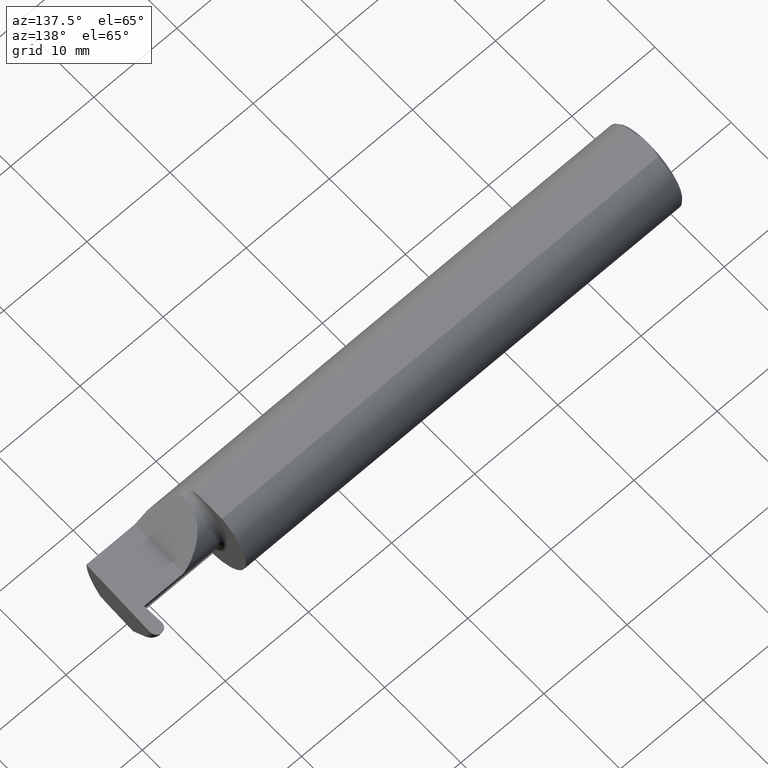
[diagram: clean part render]
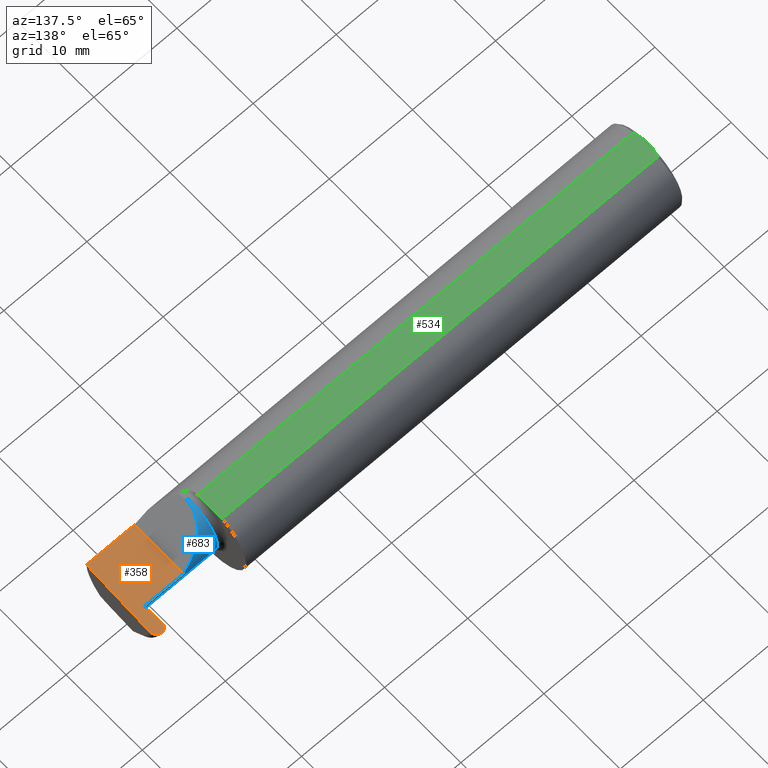
[diagram: same view with three faces highlighted in distinct colors, each labeled with its STEP entity id]
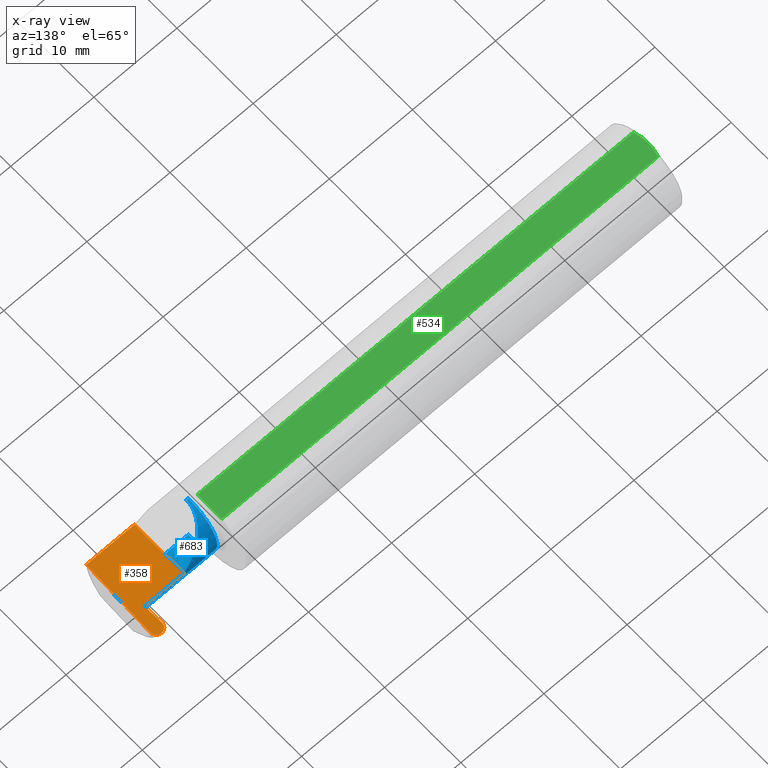
[diagram: x-ray of the same camera — body ghosted, the three highlighted faces saturated]
A machine part, auxiliary view with three faces highlighted in distinct colors.
The next image is the same camera in x-ray (body ghosted, the three faces saturated) — at least one of them is partly hidden behind the body in this view.
Their STEP definitions:

[orange] entity #358 — the highlighted planar face has unit normal (-0, 0, -1).
#28 = CARTESIAN_POINT ( 'NONE',  ( 2.260000000000000231, -0.2500000000000000555, 2.939152317953647352E-17 ) ) ;
#37 = DIRECTION ( 'NONE',  ( -1.224646799147353947E-16, 0.000000000000000000, -1.000000000000000000 ) ) ;
#41 = CARTESIAN_POINT ( 'NONE',  ( 2.260000000000000231, 0.06665000000000002867, 5.204748896376251932E-17 ) ) ;
#42 = VERTEX_POINT ( 'NONE', #554 ) ;
#49 = LINE ( 'NONE', #307, #657 ) ;
#54 = CARTESIAN_POINT ( 'NONE',  ( 2.443917087302114766, 0.1556210691174950977, 0.000000000000000000 ) ) ;
#64 = EDGE_CURVE ( 'NONE', #66, #747, #49, .T. ) ;
#66 = VERTEX_POINT ( 'NONE', #604 ) ;
#83 =( BOUNDED_CURVE ( )  B_SPLINE_CURVE ( 3, ( #421, #430, #743, #114 ),
 .UNSPECIFIED., .F., .F. ) 
 B_SPLINE_CURVE_WITH_KNOTS ( ( 4, 4 ),
 ( 6.199081184676152212, 7.797674339294876411 ),
 .UNSPECIFIED. ) 
 CURVE ( )  GEOMETRIC_REPRESENTATION_ITEM ( )  RATIONAL_B_SPLINE_CURVE ( ( 1.000000000000000000, 0.7981407609938082626, 0.7981407609938082626, 1.000000000000000000 ) ) 
 REPRESENTATION_ITEM ( '' )  );
#86 = VERTEX_POINT ( 'NONE', #120 ) ;
#114 = CARTESIAN_POINT ( 'NONE',  ( 2.443960049305725857, 0.1543907983005533280, 0.000000000000000000 ) ) ;
#120 = CARTESIAN_POINT ( 'NONE',  ( 2.499939950694276103, 0.1543907983005533280, 0.000000000000000000 ) ) ;
#126 = ORIENTED_EDGE ( 'NONE', *, *, #188, .F. ) ;
#127 = EDGE_CURVE ( 'NONE', #194, #433, #613, .T. ) ;
#129 = CARTESIAN_POINT ( 'NONE',  ( 2.447024025498200750, 0.06664999999999991764, 0.000000000000000000 ) ) ;
#139 = DIRECTION ( 'NONE',  ( -1.000000000000000000, -0.000000000000000000, -0.000000000000000000 ) ) ;
#140 = ORIENTED_EDGE ( 'NONE', *, *, #272, .F. ) ;
#145 = CARTESIAN_POINT ( 'NONE',  ( 2.499982912697886750, 0.1556210691174950700, 0.000000000000000000 ) ) ;
#162 = CARTESIAN_POINT ( 'NONE',  ( 2.500000000000000000, -0.2500000000000000555, 0.000000000000000000 ) ) ;
#188 = EDGE_CURVE ( 'NONE', #42, #550, #458, .T. ) ;
#194 = VERTEX_POINT ( 'NONE', #129 ) ;
#213 = CARTESIAN_POINT ( 'NONE',  ( 2.472196486352602030, 0.1846500000000000363, 0.000000000000000000 ) ) ;
#249 = DIRECTION ( 'NONE',  ( -0.03489949670249503644, 0.9993908270190959842, -0.000000000000000000 ) ) ;
#261 = VECTOR ( 'NONE', #394, 39.37007874015748854 ) ;
#267 = CARTESIAN_POINT ( 'NONE',  ( 2.447024025498200750, 0.06664999999999991764, 0.000000000000000000 ) ) ;
#272 = EDGE_CURVE ( 'NONE', #403, #805, #771, .T. ) ;
#274 = ORIENTED_EDGE ( 'NONE', *, *, #589, .T. ) ;
#289 = VECTOR ( 'NONE', #139, 39.37007874015748143 ) ;
#307 = CARTESIAN_POINT ( 'NONE',  ( -0.001039370078740541395, 0.1846500000000000363, 0.000000000000000000 ) ) ;
#312 = CARTESIAN_POINT ( 'NONE',  ( 2.075000000000000178, 0.06665000000000002867, 5.204748896376251932E-17 ) ) ;
#322 = CARTESIAN_POINT ( 'NONE',  ( 2.437903374698175529, 0.06664999999999991764, 0.000000000000000000 ) ) ;
#340 = FACE_OUTER_BOUND ( 'NONE', #464, .T. ) ;
#355 = CARTESIAN_POINT ( 'NONE',  ( 2.499939950694276103, 0.1543907983005533280, 0.000000000000000000 ) ) ;
#358 = ADVANCED_FACE ( 'NONE', ( #340 ), #590, .F. ) ;
#394 = DIRECTION ( 'NONE',  ( -0.03489949670249509889, -0.9993908270190959842, 0.000000000000000000 ) ) ;
#403 = VERTEX_POINT ( 'NONE', #41 ) ;
#421 = CARTESIAN_POINT ( 'NONE',  ( 2.471703513647399486, 0.1846500000000000363, 0.000000000000000000 ) ) ;
#430 = CARTESIAN_POINT ( 'NONE',  ( 2.454931386279057826, 0.1846500000000000918, 2.084523217784548210E-18 ) ) ;
#433 = VERTEX_POINT ( 'NONE', #645 ) ;
#448 = EDGE_CURVE ( 'NONE', #805, #194, #696, .T. ) ;
#456 = ORIENTED_EDGE ( 'NONE', *, *, #64, .F. ) ;
#457 = LINE ( 'NONE', #145, #261 ) ;
#458 = LINE ( 'NONE', #572, #289 ) ;
#464 = EDGE_LOOP ( 'NONE', ( #456, #730, #473, #507, #140, #717, #126, #787, #274 ) ) ;
#470 = DIRECTION ( 'NONE',  ( -1.000000000000000000, 0.000000000000000000, 1.224646799147353947E-16 ) ) ;
#473 = ORIENTED_EDGE ( 'NONE', *, *, #127, .F. ) ;
#495 = DIRECTION ( 'NONE',  ( 1.000000000000000000, -0.000000000000000000, -0.000000000000000000 ) ) ;
#498 = DIRECTION ( 'NONE',  ( 1.000000000000000000, 0.000000000000000000, 0.000000000000000000 ) ) ;
#499 = EDGE_CURVE ( 'NONE', #86, #42, #457, .T. ) ;
#507 = ORIENTED_EDGE ( 'NONE', *, *, #448, .F. ) ;
#517 = VECTOR ( 'NONE', #588, 39.37007874015748143 ) ;
#531 = CARTESIAN_POINT ( 'NONE',  ( 2.488968613720943246, 0.1846500000000000641, -2.084523217784549751E-18 ) ) ;
#538 = CARTESIAN_POINT ( 'NONE',  ( 2.260000000000000231, -0.1873499999999999888, 2.939152317953647352E-17 ) ) ;
#550 = VERTEX_POINT ( 'NONE', #538 ) ;
#551 = CARTESIAN_POINT ( 'NONE',  ( 2.472196486352602030, 0.1846500000000000363, 0.000000000000000000 ) ) ;
#554 = CARTESIAN_POINT ( 'NONE',  ( 2.488006099050898090, -0.1873499999999999888, 0.000000000000000000 ) ) ;
#565 = EDGE_CURVE ( 'NONE', #550, #403, #788, .T. ) ;
#569 = VECTOR ( 'NONE', #249, 39.37007874015748854 ) ;
#572 = CARTESIAN_POINT ( 'NONE',  ( 3.749399456654646757E-32, -0.1873499999999999610, 3.061616997868383634E-16 ) ) ;
#588 = DIRECTION ( 'NONE',  ( 1.000000000000000000, -0.000000000000000000, -0.000000000000000000 ) ) ;
#589 = EDGE_CURVE ( 'NONE', #86, #747, #666, .T. ) ;
#590 = PLANE ( 'NONE',  #816 ) ;
#604 = CARTESIAN_POINT ( 'NONE',  ( 2.471703513647399486, 0.1846500000000000363, 0.000000000000000000 ) ) ;
#613 = LINE ( 'NONE', #54, #569 ) ;
#623 = EDGE_CURVE ( 'NONE', #66, #433, #83, .T. ) ;
#645 = CARTESIAN_POINT ( 'NONE',  ( 2.443960049305725857, 0.1543907983005533280, 0.000000000000000000 ) ) ;
#657 = VECTOR ( 'NONE', #495, 39.37007874015748143 ) ;
#665 = CARTESIAN_POINT ( 'NONE',  ( 2.500555318597047716, 0.1720126294265148514, -3.503485321703165850E-18 ) ) ;
#666 =( BOUNDED_CURVE ( )  B_SPLINE_CURVE ( 3, ( #355, #665, #531, #213 ),
 .UNSPECIFIED., .F., .T. ) 
 B_SPLINE_CURVE_WITH_KNOTS ( ( 4, 4 ),
 ( 1.627103621474501827, 3.225696776093226248 ),
 .UNSPECIFIED. ) 
 CURVE ( )  GEOMETRIC_REPRESENTATION_ITEM ( )  RATIONAL_B_SPLINE_CURVE ( ( 1.000000000000000000, 0.7981407609938081515, 0.7981407609938081515, 1.000000000000000000 ) ) 
 REPRESENTATION_ITEM ( '' )  );
#670 = VECTOR ( 'NONE', #785, 39.37007874015748143 ) ;
#696 = LINE ( 'NONE', #267, #517 ) ;
#717 = ORIENTED_EDGE ( 'NONE', *, *, #565, .F. ) ;
#730 = ORIENTED_EDGE ( 'NONE', *, *, #623, .T. ) ;
#743 = CARTESIAN_POINT ( 'NONE',  ( 2.443344681402952911, 0.1720126294265148792, 3.503485321703165080E-18 ) ) ;
#747 = VERTEX_POINT ( 'NONE', #551 ) ;
#750 = VECTOR ( 'NONE', #498, 39.37007874015748143 ) ;
#771 = LINE ( 'NONE', #312, #750 ) ;
#785 = DIRECTION ( 'NONE',  ( -0.000000000000000000, 1.000000000000000000, -0.000000000000000000 ) ) ;
#787 = ORIENTED_EDGE ( 'NONE', *, *, #499, .F. ) ;
#788 = LINE ( 'NONE', #28, #670 ) ;
#805 = VERTEX_POINT ( 'NONE', #322 ) ;
#816 = AXIS2_PLACEMENT_3D ( 'NONE', #162, #37, #470 ) ;

[blue] entity #683 — the highlighted cylindrical surface (partial cylindrical patch) has radius 3.81 mm, axis along (-1, -0, -0).
#6 = CARTESIAN_POINT ( 'NONE',  ( 2.100000000000000089, -0.08334999999999999354, 0.000000000000000000 ) ) ;
#10 = DIRECTION ( 'NONE',  ( -1.000000000000000000, -0.000000000000000000, -0.000000000000000000 ) ) ;
#41 = CARTESIAN_POINT ( 'NONE',  ( 2.260000000000000231, 0.06665000000000002867, 5.204748896376251932E-17 ) ) ;
#48 = CARTESIAN_POINT ( 'NONE',  ( 2.172132034355963359, 0.06665000000000001479, 0.08786796564403576149 ) ) ;
#58 = CYLINDRICAL_SURFACE ( 'NONE', #779, 0.1500000000000000500 ) ;
#61 = LINE ( 'NONE', #484, #642 ) ;
#95 = CARTESIAN_POINT ( 'NONE',  ( 2.109999999999998987, -0.08334999999999999354, 0.1500000000000000500 ) ) ;
#102 = ORIENTED_EDGE ( 'NONE', *, *, #577, .T. ) ;
#137 = CARTESIAN_POINT ( 'NONE',  ( 2.100000000000000089, -0.08334999999999996578, -0.1500000000000000777 ) ) ;
#154 = CARTESIAN_POINT ( 'NONE',  ( 2.109999999999998543, 0.004517965644035750600, 0.1500000000000000500 ) ) ;
#166 = VERTEX_POINT ( 'NONE', #700 ) ;
#176 = EDGE_CURVE ( 'NONE', #726, #488, #630, .T. ) ;
#198 = ORIENTED_EDGE ( 'NONE', *, *, #478, .F. ) ;
#209 = VERTEX_POINT ( 'NONE', #389 ) ;
#212 = EDGE_CURVE ( 'NONE', #533, #371, #328, .T. ) ;
#225 = CARTESIAN_POINT ( 'NONE',  ( 2.109999999999998987, -0.08334999999999999354, 0.1500000000000000500 ) ) ;
#238 = DIRECTION ( 'NONE',  ( 0.000000000000000000, 0.000000000000000000, 1.000000000000000000 ) ) ;
#245 = EDGE_CURVE ( 'NONE', #371, #488, #552, .T. ) ;
#246 = CARTESIAN_POINT ( 'NONE',  ( 2.075000000000000178, -0.08334999999999999354, 0.1500000000000000500 ) ) ;
#258 = DIRECTION ( 'NONE',  ( -1.000000000000000000, -0.000000000000000000, -0.000000000000000000 ) ) ;
#272 = EDGE_CURVE ( 'NONE', #403, #805, #771, .T. ) ;
#281 = CARTESIAN_POINT ( 'NONE',  ( 2.437903374698175529, 0.06664999999999991764, 0.000000000000000000 ) ) ;
#292 = CARTESIAN_POINT ( 'NONE',  ( 2.260000000000000231, 0.06665000000000002867, 5.204748896376251932E-17 ) ) ;
#294 = EDGE_CURVE ( 'NONE', #166, #805, #757, .T. ) ;
#301 = VECTOR ( 'NONE', #441, 39.37007874015748143 ) ;
#312 = CARTESIAN_POINT ( 'NONE',  ( 2.075000000000000178, 0.06665000000000002867, 5.204748896376251932E-17 ) ) ;
#322 = CARTESIAN_POINT ( 'NONE',  ( 2.437903374698175529, 0.06664999999999991764, 0.000000000000000000 ) ) ;
#328 = LINE ( 'NONE', #246, #301 ) ;
#343 = CARTESIAN_POINT ( 'NONE',  ( 2.437872916049129923, 0.06661954135095467244, -0.001744974835127337774 ) ) ;
#348 = CARTESIAN_POINT ( 'NONE',  ( 2.100000000000000089, -0.08334999999999997966, 0.1500000000000000777 ) ) ;
#371 = VERTEX_POINT ( 'NONE', #348 ) ;
#378 = DIRECTION ( 'NONE',  ( -1.000000000000000000, -0.000000000000000000, -0.000000000000000000 ) ) ;
#383 = CARTESIAN_POINT ( 'NONE',  ( 2.449781798287666845, -0.08334999999999999354, -0.1500000000000000500 ) ) ;
#389 = CARTESIAN_POINT ( 'NONE',  ( 2.447118648061411772, 0.06655862405286416816, -0.005234924505382331644 ) ) ;
#403 = VERTEX_POINT ( 'NONE', #41 ) ;
#440 =( BOUNDED_CURVE ( )  B_SPLINE_CURVE ( 3, ( #383, #628, #705, #520 ),
 .UNSPECIFIED., .F., .T. ) 
 B_SPLINE_CURVE_WITH_KNOTS ( ( 4, 4 ),
 ( 3.159045946109736214, 4.694935687864698615 ),
 .UNSPECIFIED. ) 
 CURVE ( )  GEOMETRIC_REPRESENTATION_ITEM ( )  RATIONAL_B_SPLINE_CURVE ( ( 1.000000000000000000, 0.8128932002257782674, 0.8128932002257782674, 1.000000000000000000 ) ) 
 REPRESENTATION_ITEM ( '' )  );
#441 = DIRECTION ( 'NONE',  ( -1.000000000000000000, -0.000000000000000000, -0.000000000000000000 ) ) ;
#463 = CARTESIAN_POINT ( 'NONE',  ( 2.437842457400084761, 0.06658908270190941336, -0.003489949670254675548 ) ) ;
#477 = ORIENTED_EDGE ( 'NONE', *, *, #651, .F. ) ;
#478 = EDGE_CURVE ( 'NONE', #726, #209, #440, .T. ) ;
#484 = CARTESIAN_POINT ( 'NONE',  ( 2.075000000000000178, 0.06655862405286419592, -0.005234924505381327239 ) ) ;
#488 = VERTEX_POINT ( 'NONE', #137 ) ;
#492 = ORIENTED_EDGE ( 'NONE', *, *, #176, .T. ) ;
#498 = DIRECTION ( 'NONE',  ( 1.000000000000000000, 0.000000000000000000, 0.000000000000000000 ) ) ;
#516 = DIRECTION ( 'NONE',  ( 0.000000000000000000, 0.000000000000000000, 1.000000000000000000 ) ) ;
#520 = CARTESIAN_POINT ( 'NONE',  ( 2.447118648061411772, 0.06655862405286416816, -0.005234924505382331644 ) ) ;
#533 = VERTEX_POINT ( 'NONE', #95 ) ;
#552 = CIRCLE ( 'NONE', #800, 0.1500000000000000500 ) ;
#562 = CARTESIAN_POINT ( 'NONE',  ( 2.075000000000000178, -0.08334999999999997966, -0.1500000000000000500 ) ) ;
#577 = EDGE_CURVE ( 'NONE', #533, #403, #587, .T. ) ;
#581 = VECTOR ( 'NONE', #258, 39.37007874015748143 ) ;
#587 =( BOUNDED_CURVE ( )  B_SPLINE_CURVE ( 3, ( #225, #154, #48, #292 ),
 .UNSPECIFIED., .F., .F. ) 
 B_SPLINE_CURVE_WITH_KNOTS ( ( 4, 4 ),
 ( 0.000000000000000000, 1.570796326794896336 ),
 .UNSPECIFIED. ) 
 CURVE ( )  GEOMETRIC_REPRESENTATION_ITEM ( )  RATIONAL_B_SPLINE_CURVE ( ( 1.000000000000000000, 0.8047378541243650485, 0.8047378541243650485, 1.000000000000000000 ) ) 
 REPRESENTATION_ITEM ( '' )  );
#612 = FACE_OUTER_BOUND ( 'NONE', #778, .T. ) ;
#615 = CARTESIAN_POINT ( 'NONE',  ( 2.075000000000000178, -0.08334999999999999354, 0.000000000000000000 ) ) ;
#626 = ORIENTED_EDGE ( 'NONE', *, *, #294, .F. ) ;
#628 = CARTESIAN_POINT ( 'NONE',  ( 2.449754845031671291, 0.002105059811798285982, -0.1500000000000000500 ) ) ;
#630 = LINE ( 'NONE', #562, #581 ) ;
#642 = VECTOR ( 'NONE', #677, 39.37007874015748143 ) ;
#651 = EDGE_CURVE ( 'NONE', #209, #166, #61, .T. ) ;
#677 = DIRECTION ( 'NONE',  ( -1.000000000000000000, -0.000000000000000000, -0.000000000000000000 ) ) ;
#679 = ORIENTED_EDGE ( 'NONE', *, *, #245, .F. ) ;
#683 = ADVANCED_FACE ( 'NONE', ( #612 ), #58, .T. ) ;
#700 = CARTESIAN_POINT ( 'NONE',  ( 2.437811998751039599, 0.06655862405286416816, -0.005234924505382013322 ) ) ;
#701 = ORIENTED_EDGE ( 'NONE', *, *, #212, .F. ) ;
#705 = CARTESIAN_POINT ( 'NONE',  ( 2.448662799063223705, 0.06357628547474618308, -0.09063792740366161116 ) ) ;
#713 = ORIENTED_EDGE ( 'NONE', *, *, #272, .T. ) ;
#726 = VERTEX_POINT ( 'NONE', #812 ) ;
#750 = VECTOR ( 'NONE', #498, 39.37007874015748143 ) ;
#757 = B_SPLINE_CURVE_WITH_KNOTS ( 'NONE', 3,
 ( #776, #463, #343, #281 ),
 .UNSPECIFIED., .F., .F.,
 ( 4, 4 ),
 ( 0.000000000000000000, 1.000000000000000000 ),
 .UNSPECIFIED. ) ;
#771 = LINE ( 'NONE', #312, #750 ) ;
#776 = CARTESIAN_POINT ( 'NONE',  ( 2.437811998751039599, 0.06655862405286416816, -0.005234924505382013322 ) ) ;
#778 = EDGE_LOOP ( 'NONE', ( #198, #492, #679, #701, #102, #713, #626, #477 ) ) ;
#779 = AXIS2_PLACEMENT_3D ( 'NONE', #615, #378, #238 ) ;
#800 = AXIS2_PLACEMENT_3D ( 'NONE', #6, #10, #516 ) ;
#805 = VERTEX_POINT ( 'NONE', #322 ) ;
#812 = CARTESIAN_POINT ( 'NONE',  ( 2.449781798287666845, -0.08334999999999999354, -0.1500000000000000500 ) ) ;

[green] entity #534 — the highlighted planar face has unit normal (0, 0, 1).
#9 = B_SPLINE_CURVE_WITH_KNOTS ( 'NONE', 3,
 ( #585, #716, #652, #30 ),
 .UNSPECIFIED., .F., .F.,
 ( 4, 4 ),
 ( 0.009771445421851449736, 0.01092787937989102981 ),
 .UNSPECIFIED. ) ;
#16 = CARTESIAN_POINT ( 'NONE',  ( 2.075000000000000178, 0.1873499999999998500, 0.1763499999999999235 ) ) ;
#26 = ORIENTED_EDGE ( 'NONE', *, *, #745, .T. ) ;
#30 = CARTESIAN_POINT ( 'NONE',  ( 0.000000000000000000, -0.01880691362239451242, 0.1763499999999999235 ) ) ;
#36 = CARTESIAN_POINT ( 'NONE',  ( 2.876828993045917215, 0.1873499999999998500, 0.1763499999999999235 ) ) ;
#62 = CARTESIAN_POINT ( 'NONE',  ( 0.000000000000000000, -0.01880691362239451242, 0.1763499999999999235 ) ) ;
#123 = VECTOR ( 'NONE', #269, 39.37007874015748143 ) ;
#131 = ORIENTED_EDGE ( 'NONE', *, *, #350, .F. ) ;
#156 = ORIENTED_EDGE ( 'NONE', *, *, #758, .F. ) ;
#165 = DIRECTION ( 'NONE',  ( 0.000000000000000000, 0.000000000000000000, 1.000000000000000000 ) ) ;
#182 = VERTEX_POINT ( 'NONE', #579 ) ;
#187 = CARTESIAN_POINT ( 'NONE',  ( 0.001616639753276218755, 0.03405189565400963680, 0.1763499999999999235 ) ) ;
#211 = ORIENTED_EDGE ( 'NONE', *, *, #256, .T. ) ;
#227 = CARTESIAN_POINT ( 'NONE',  ( 0.009999999999999346217, 0.06325108694718235836, 0.1763499999999999235 ) ) ;
#228 = VECTOR ( 'NONE', #814, 39.37007874015748143 ) ;
#231 = ORIENTED_EDGE ( 'NONE', *, *, #361, .T. ) ;
#241 = CARTESIAN_POINT ( 'NONE',  ( 0.009999999999999346217, 0.06325108694718235836, 0.1763499999999999235 ) ) ;
#248 = VECTOR ( 'NONE', #535, 39.37007874015748143 ) ;
#255 = VERTEX_POINT ( 'NONE', #62 ) ;
#256 = EDGE_CURVE ( 'NONE', #296, #491, #766, .T. ) ;
#269 = DIRECTION ( 'NONE',  ( -1.000000000000000000, -0.000000000000000000, -0.000000000000000000 ) ) ;
#284 = LINE ( 'NONE', #605, #248 ) ;
#296 = VERTEX_POINT ( 'NONE', #336 ) ;
#300 = LINE ( 'NONE', #489, #321 ) ;
#321 = VECTOR ( 'NONE', #556, 39.37007874015748143 ) ;
#331 = CARTESIAN_POINT ( 'NONE',  ( 2.075000000000000178, 0.06325108694718235836, 0.1763499999999999235 ) ) ;
#333 = ORIENTED_EDGE ( 'NONE', *, *, #549, .F. ) ;
#336 = CARTESIAN_POINT ( 'NONE',  ( 2.075000000000000178, -0.06325108694718283020, 0.1763499999999999235 ) ) ;
#345 = FACE_OUTER_BOUND ( 'NONE', #354, .T. ) ;
#350 = EDGE_CURVE ( 'NONE', #182, #255, #9, .T. ) ;
#354 = EDGE_LOOP ( 'NONE', ( #26, #211, #231, #156, #333, #131 ) ) ;
#361 = EDGE_CURVE ( 'NONE', #491, #415, #710, .T. ) ;
#415 = VERTEX_POINT ( 'NONE', #227 ) ;
#417 = DIRECTION ( 'NONE',  ( 1.000000000000000000, 0.000000000000000000, -0.000000000000000000 ) ) ;
#489 = CARTESIAN_POINT ( 'NONE',  ( 0.000000000000000000, -0.06325108694718235836, 0.1763499999999999235 ) ) ;
#491 = VERTEX_POINT ( 'NONE', #331 ) ;
#534 = ADVANCED_FACE ( 'NONE', ( #345 ), #596, .T. ) ;
#535 = DIRECTION ( 'NONE',  ( -0.000000000000000000, 1.000000000000000000, -0.000000000000000000 ) ) ;
#537 = VERTEX_POINT ( 'NONE', #602 ) ;
#549 = EDGE_CURVE ( 'NONE', #255, #537, #284, .T. ) ;
#556 = DIRECTION ( 'NONE',  ( 1.000000000000000000, 0.000000000000000000, 0.000000000000000000 ) ) ;
#579 = CARTESIAN_POINT ( 'NONE',  ( 0.009999999999999346217, -0.06325108694718235836, 0.1763499999999999235 ) ) ;
#585 = CARTESIAN_POINT ( 'NONE',  ( 0.009999999999999346217, -0.06325108694718235836, 0.1763499999999999235 ) ) ;
#596 = PLANE ( 'NONE',  #606 ) ;
#602 = CARTESIAN_POINT ( 'NONE',  ( 0.000000000000000000, 0.01880691362239451242, 0.1763499999999999235 ) ) ;
#605 = CARTESIAN_POINT ( 'NONE',  ( 0.000000000000000000, 0.1873499999999998500, 0.1763499999999999235 ) ) ;
#606 = AXIS2_PLACEMENT_3D ( 'NONE', #36, #165, #417 ) ;
#652 = CARTESIAN_POINT ( 'NONE',  ( 0.001595548104417217512, -0.03385300050298979679, 0.1763499999999999235 ) ) ;
#710 = LINE ( 'NONE', #719, #123 ) ;
#716 = CARTESIAN_POINT ( 'NONE',  ( 0.005151108632379595466, -0.04888864921576189376, 0.1763499999999999235 ) ) ;
#719 = CARTESIAN_POINT ( 'NONE',  ( 0.000000000000000000, 0.06325108694718235836, 0.1763499999999999235 ) ) ;
#725 = B_SPLINE_CURVE_WITH_KNOTS ( 'NONE', 3,
 ( #740, #187, #806, #241 ),
 .UNSPECIFIED., .F., .F.,
 ( 4, 4 ),
 ( 0.01188664626022267051, 0.01304646959483758001 ),
 .UNSPECIFIED. ) ;
#740 = CARTESIAN_POINT ( 'NONE',  ( 0.000000000000000000, 0.01880691362239451242, 0.1763499999999999235 ) ) ;
#745 = EDGE_CURVE ( 'NONE', #182, #296, #300, .T. ) ;
#758 = EDGE_CURVE ( 'NONE', #537, #415, #725, .T. ) ;
#766 = LINE ( 'NONE', #16, #228 ) ;
#806 = CARTESIAN_POINT ( 'NONE',  ( 0.005155213631852355663, 0.04890080824240217866, 0.1763499999999999235 ) ) ;
#814 = DIRECTION ( 'NONE',  ( 0.000000000000000000, 1.000000000000000000, 0.000000000000000000 ) ) ;